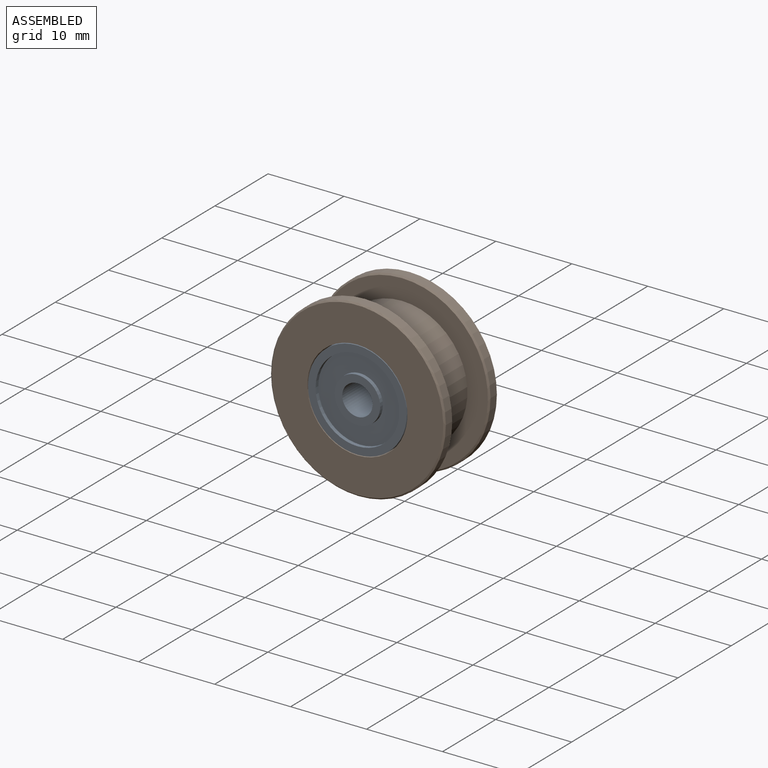
[diagram: assembled view]
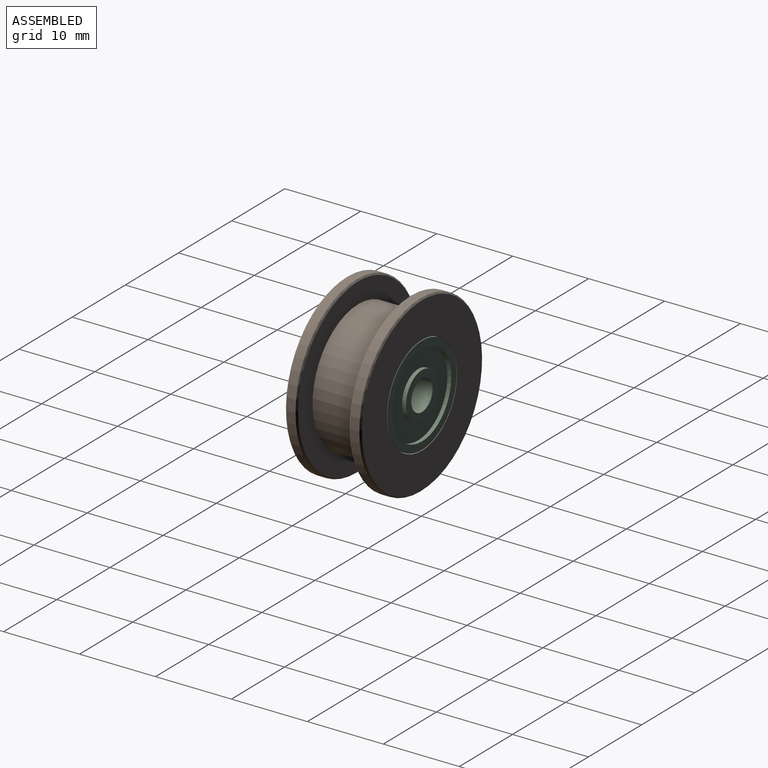
[diagram: assembled view, second angle]
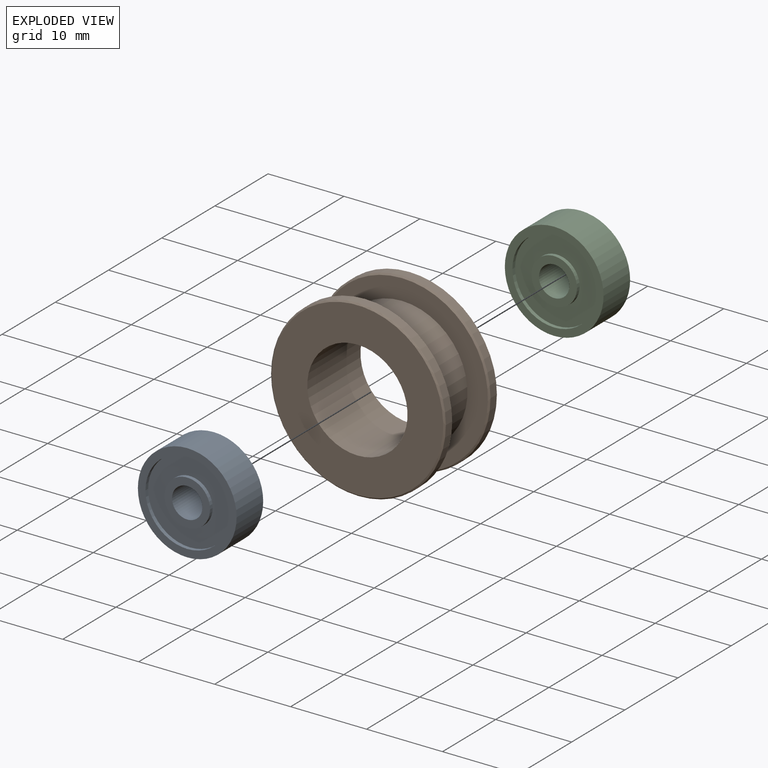
[diagram: exploded view]
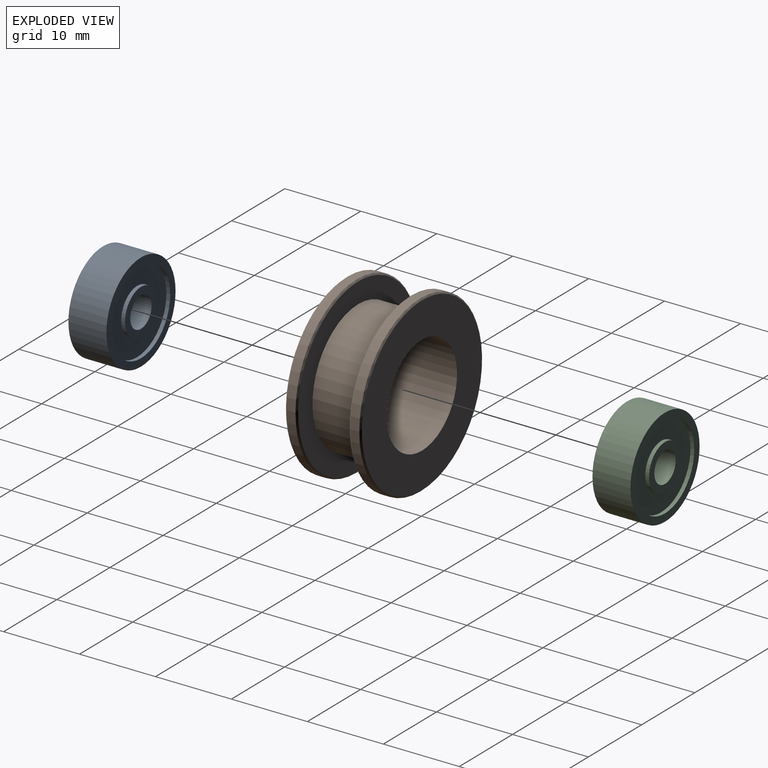
[diagram: exploded view, second angle]
ASSEMBLY  parts=3 mates=2
PART A: 12 faces, bbox 13x13x5 mm
  f0: plane 6x6mm, normal (0,0,-1), area 15.7mm2, adj f2,f9
  f1: plane 6x6mm, normal (0,0,1), area 15.7mm2, adj f2,f6
  f2: cylinder r=2mm len=5mm, axis (0,0,-1), area 62.8mm2, adj f0,f1
  f3: cylinder r=6.5mm len=13mm, axis (0,0,-1), area 204.2mm2, adj f4,f5
  f4: plane 13x13mm, normal (0,0,1), area 37.7mm2, adj f3,f7
  f5: plane 13x13mm, normal (0,0,-1), area 37.7mm2, adj f3,f10
  f6: cylinder r=3mm len=6mm, axis (0,0,1), area 9.4mm2, adj f1,f8
  f7: cylinder r=5.5mm len=11mm, axis (0,0,1), area 17.3mm2, adj f4,f8
  f8: plane 11x11mm, normal (0,0,1), area 66.8mm2, adj f6,f7
  f9: cylinder r=3mm len=6mm, axis (0,0,-1), area 9.4mm2, adj f0,f11
  f10: cylinder r=5.5mm len=11mm, axis (0,0,-1), area 17.3mm2, adj f5,f11
  f11: plane 11x11mm, normal (0,0,-1), area 66.8mm2, adj f9,f10
PART B: 12 faces, bbox 23x10x23 mm
  f0: cylinder r=8.6mm len=17.2mm, axis (0,1,0), area 367.4mm2, adj f5,f7
  f1: cylinder r=6.6mm len=13.2mm, axis (0,1,0), area 414.7mm2, adj f2,f3
  f2: plane 22.6x22.6mm, normal (0,-1,0), area 264.3mm2, adj f1,f10
  f3: plane 22.6x22.6mm, normal (0,1,0), area 264.3mm2, adj f1,f8
  f4: cylinder r=11.5mm len=23mm, axis (0,-1,0), area 86.7mm2, adj f10,f11
  f5: plane 22.6x22.6mm, normal (0,1,0), area 168.8mm2, adj f0,f11
  f6: cylinder r=11.5mm len=23mm, axis (0,1,0), area 86.7mm2, adj f8,f9
  f7: plane 22.6x22.6mm, normal (0,-1,0), area 168.8mm2, adj f0,f9
  f8: cone r=11.3mm half-angle=45deg, axis (0,-1,0), area 20.3mm2, adj f3,f6
  f9: cone r=11.5mm half-angle=45deg, axis (0,1,0), area 20.3mm2, adj f6,f7
  f10: cone r=11.3mm half-angle=45deg, axis (0,1,0), area 20.3mm2, adj f2,f4
  f11: cone r=11.5mm half-angle=45deg, axis (0,-1,0), area 20.3mm2, adj f4,f5
PART C: same geometry as A
PLACE A rot(axis=(1,0,0),90deg) t=(15.79,12.13,12.03)mm
PLACE B t=(15.79,17.13,12.03)mm
PLACE C rot(axis=(-1,0,0),90deg) t=(15.79,12.13,12.03)mm
MATE fastened A.f7 <-> B.f1  axis (0,-1,0) through (15.79,7.13,12.03)mm
MATE fastened C.f6 <-> B.f1  axis (0,1,0) through (15.79,17.13,12.03)mm
